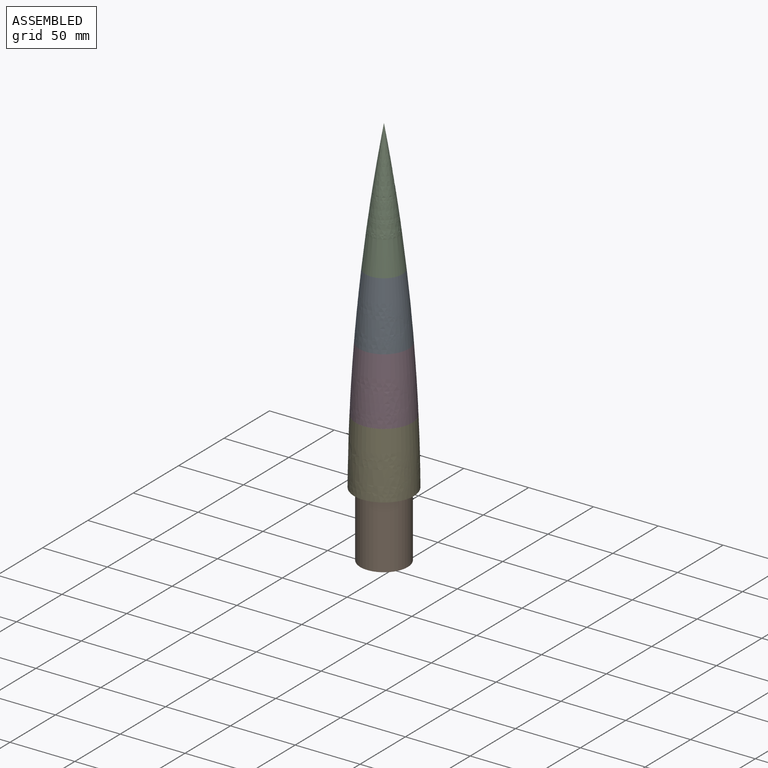
[diagram: assembled view]
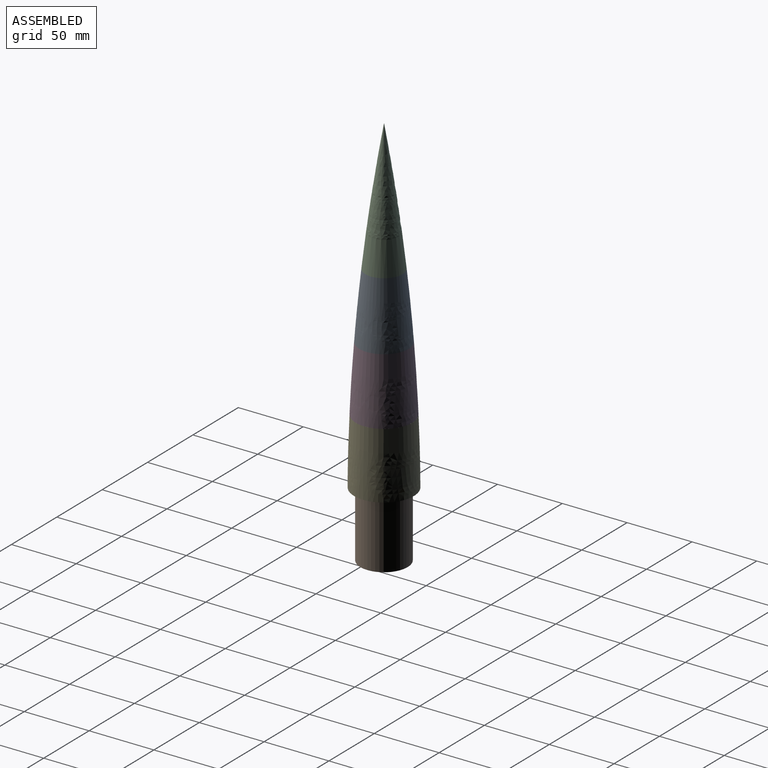
[diagram: assembled view, second angle]
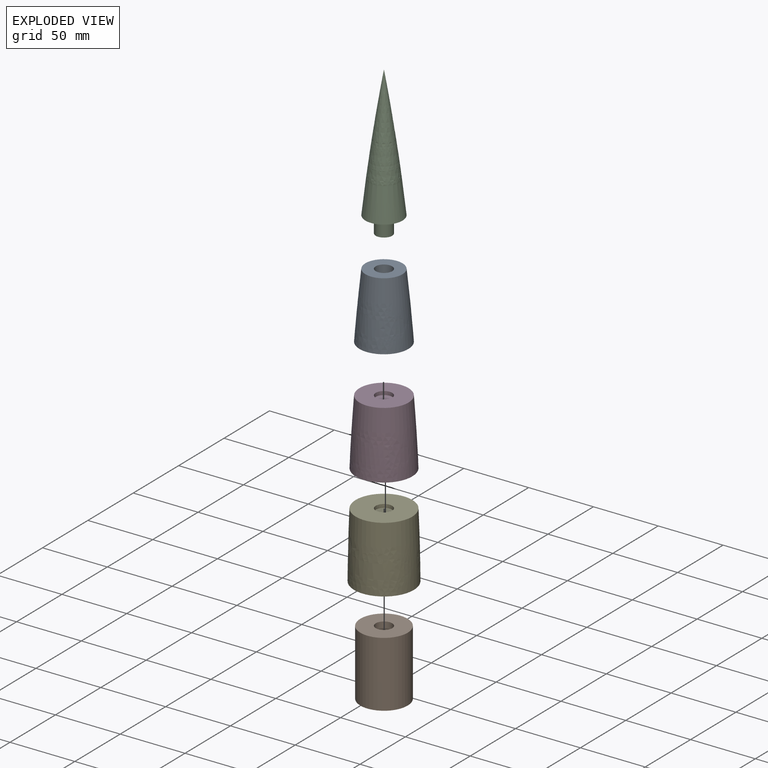
[diagram: exploded view]
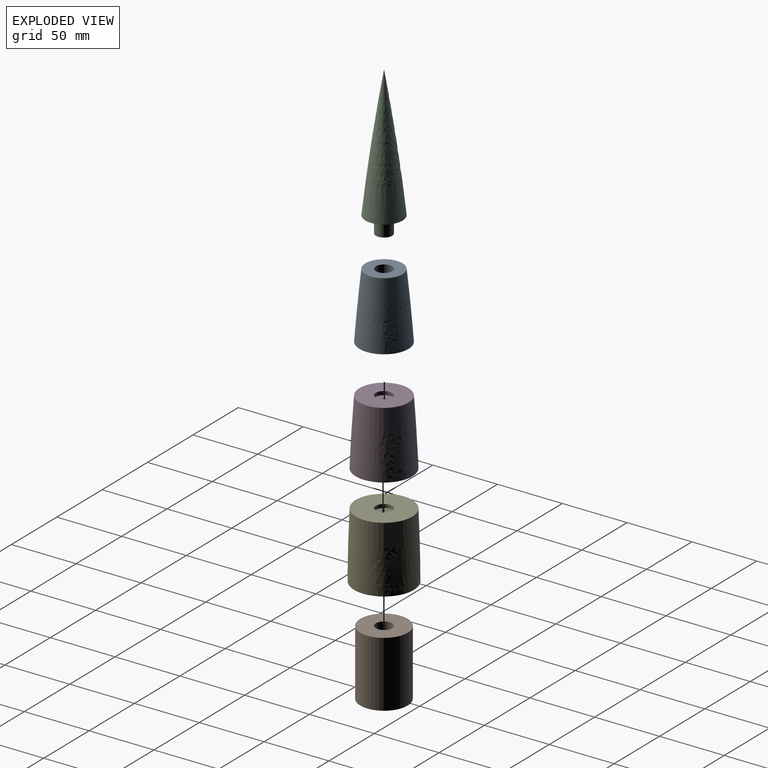
[diagram: exploded view, second angle]
ASSEMBLY  parts=5 mates=4
PART A: 13 faces, bbox 37.8x37.8x53.4 mm
  f0: plane 28.66x28.66mm, normal (0,0,1), area 517.3mm2, adj f1,f6
  f1: revolved ~50.86x37.85mm, area 5380.6mm2, adj f0,f2
  f2: plane 37.85x37.85mm, normal (0,0,-1), area 998.3mm2, adj f1,f3
  f3: cylinder r=6.35mm len=12.7mm, axis (0,0,1), area 101.3mm2, adj f2,f4
  f4: plane 12.7x12.7mm, normal (0,0,-1), area 53.5mm2, adj f3,f10
  f5: plane 12.75x12.75mm, normal (0,0,1), area 127.7mm2, adj f6
  f6: cylinder r=6.38mm len=13.02mm, axis (0,0,1), area 521.5mm2, adj f0,f5
  f7: plane 25.92x25.92mm, normal (0,0,-1), area 331.5mm2, adj f8,f12
  f8: revolved ~47.82x34.56mm, area 4599mm2, adj f7,f9
  f9: plane 34.56x34.56mm, normal (0,0,1), area 865.1mm2, adj f8,f10
  f10: cylinder r=4.83mm len=9.65mm, axis (0,0,1), area 123.2mm2, adj f4,f9
  f11: plane 15.8x15.8mm, normal (0,0,-1), area 196mm2, adj f12
  f12: cylinder r=7.9mm len=15.8mm, axis (0,0,1), area 646.1mm2, adj f7,f11
PART B: 9 faces, bbox 36.5x36.5x50.8 mm
  f0: plane 36.53x36.53mm, normal (0,0,1), area 920.1mm2, adj f1,f4
  f1: cylinder r=18.26mm len=50.8mm, axis (0,0,1), area 5829.2mm2, adj f0,f2
  f2: plane 36.53x36.53mm, normal (0,0,-1), area 167.6mm2, adj f1,f6
  f3: plane 12.75x12.75mm, normal (0,0,1), area 127.7mm2, adj f4
  f4: cylinder r=6.38mm len=12.75mm, axis (0,0,1), area 255.4mm2, adj f0,f3
  f5: plane 33.48x33.48mm, normal (0,0,-1), area 684.2mm2, adj f6,f8
  f6: cylinder r=16.74mm len=49.28mm, axis (0,0,1), area 5182.4mm2, adj f2,f5
  f7: plane 15.8x15.8mm, normal (0,0,-1), area 196mm2, adj f8
  f8: cylinder r=7.9mm len=15.8mm, axis (0,0,1), area 316.4mm2, adj f5,f7
PART C: 7 faces, bbox 28.7x28.7x114.3 mm
  f0: revolved ~101.6x28.66mm, area 4984.5mm2, adj f1
  f1: plane 28.66x28.66mm, normal (0,0,-1), area 518.4mm2, adj f0,f2
  f2: cylinder r=6.35mm len=12.7mm, axis (0,0,-1), area 506.7mm2, adj f1,f3
  f3: plane 12.7x12.7mm, normal (0,0,-1), area 53.5mm2, adj f2,f6
  f4: revolved ~91.1x25.26mm, area 3913.5mm2, adj f5
  f5: plane 25.26x25.26mm, normal (0,0,1), area 428.1mm2, adj f4,f6
  f6: cylinder r=4.83mm len=14.22mm, axis (0,0,-1), area 431.3mm2, adj f3,f5
PART D: 13 faces, bbox 43.6x43.6x53.2 mm
  f0: cone r=6.38mm half-angle=90deg, axis (0,0,1), area 997.2mm2, adj f1,f6
  f1: revolved ~50.7x43.64mm, area 6544.3mm2, adj f0,f2
  f2: cone r=6.35mm half-angle=90deg, axis (0,0,1), area 1368.8mm2, adj f1,f3
  f3: cone r=6.35mm half-angle=0deg, axis (0,0,-1), area 101.3mm2, adj f2,f4
  f4: cone r=0mm half-angle=90deg, axis (0,0,1), area 53.5mm2, adj f3,f10
  f5: cone r=0mm half-angle=90deg, axis (0,0,1), area 127.7mm2, adj f6
  f6: cone r=6.38mm half-angle=0deg, axis (0,0,-1), area 111.9mm2, adj f0,f5
  f7: cone r=6.38mm half-angle=90deg, axis (0,0,1), area 766.8mm2, adj f8,f12
  f8: revolved ~47.66x40.46mm, area 11391.1mm2, adj f7,f9
  f9: cone r=6.35mm half-angle=90deg, axis (0,0,1), area 1212.6mm2, adj f8,f10
  f10: cone r=4.83mm half-angle=0deg, axis (0,0,-1), area 123.2mm2, adj f4,f9
  f11: cone r=0mm half-angle=90deg, axis (0,0,1), area 196mm2, adj f12
  f12: cone r=7.9mm half-angle=0deg, axis (0,0,-1), area 138.7mm2, adj f7,f11
PART E: 13 faces, bbox 46.1x46.1x57.2 mm
  f0: cone r=6.38mm half-angle=90deg, axis (0,0,-1), area 1369.6mm2, adj f1,f6
  f1: revolved ~50.8x46.08mm, area 7208mm2, adj f0,f2
  f2: cone r=23.04mm half-angle=90deg, axis (0,0,-1), area 1540.7mm2, adj f1,f3
  f3: cone r=6.35mm half-angle=0deg, axis (0,0,1), area 253.4mm2, adj f2,f4
  f4: cone r=0mm half-angle=90deg, axis (0,0,-1), area 53.5mm2, adj f3,f10
  f5: cone r=0mm half-angle=90deg, axis (0,0,-1), area 127.7mm2, adj f6
  f6: cone r=6.38mm half-angle=0deg, axis (0,0,1), area 111.9mm2, adj f0,f5
  f7: cone r=6.38mm half-angle=90deg, axis (0,0,-1), area 1107.1mm2, adj f8,f12
  f8: revolved ~47.76x43.01mm, area 6320.4mm2, adj f7,f9
  f9: cone r=23.04mm half-angle=90deg, axis (0,0,-1), area 1379.4mm2, adj f8,f10
  f10: cone r=4.83mm half-angle=0deg, axis (0,0,1), area 238.8mm2, adj f4,f9
  f11: cone r=0mm half-angle=90deg, axis (0,0,-1), area 196mm2, adj f12
  f12: cone r=7.9mm half-angle=0deg, axis (0,0,1), area 138.7mm2, adj f7,f11
PLACE A rot(axis=(0,-1,0),0deg) t=(-138.09,-19.14,6.86)mm
PLACE B rot(axis=(0,-1,0),0deg) t=(-138.09,-19.14,6.96)mm
PLACE C rot(axis=(0,-1,0),0deg) t=(-137.51,-19.14,6.92)mm
PLACE D rot(axis=(0.01,-0.78,-0.62),0deg) t=(-138.1,-19.14,6.96)mm
PLACE E rot(axis=(0,-1,0),0deg) t=(-138.09,-19.14,6.96)mm
MATE fastened D.f4 <-> E.f11  axis (0,0,1) through (-138.1,-19.14,57.76)mm
MATE fastened E.f2 <-> B.f1  axis (0,0,1) through (-138.09,-19.14,6.96)mm
MATE fastened C.f2 <-> A.f3  axis (0,0,-1) through (-138.11,-19.14,159.32)mm
MATE fastened A.f3 <-> D.f4  axis (0,0,-1) through (-138.11,-19.14,108.46)mm
